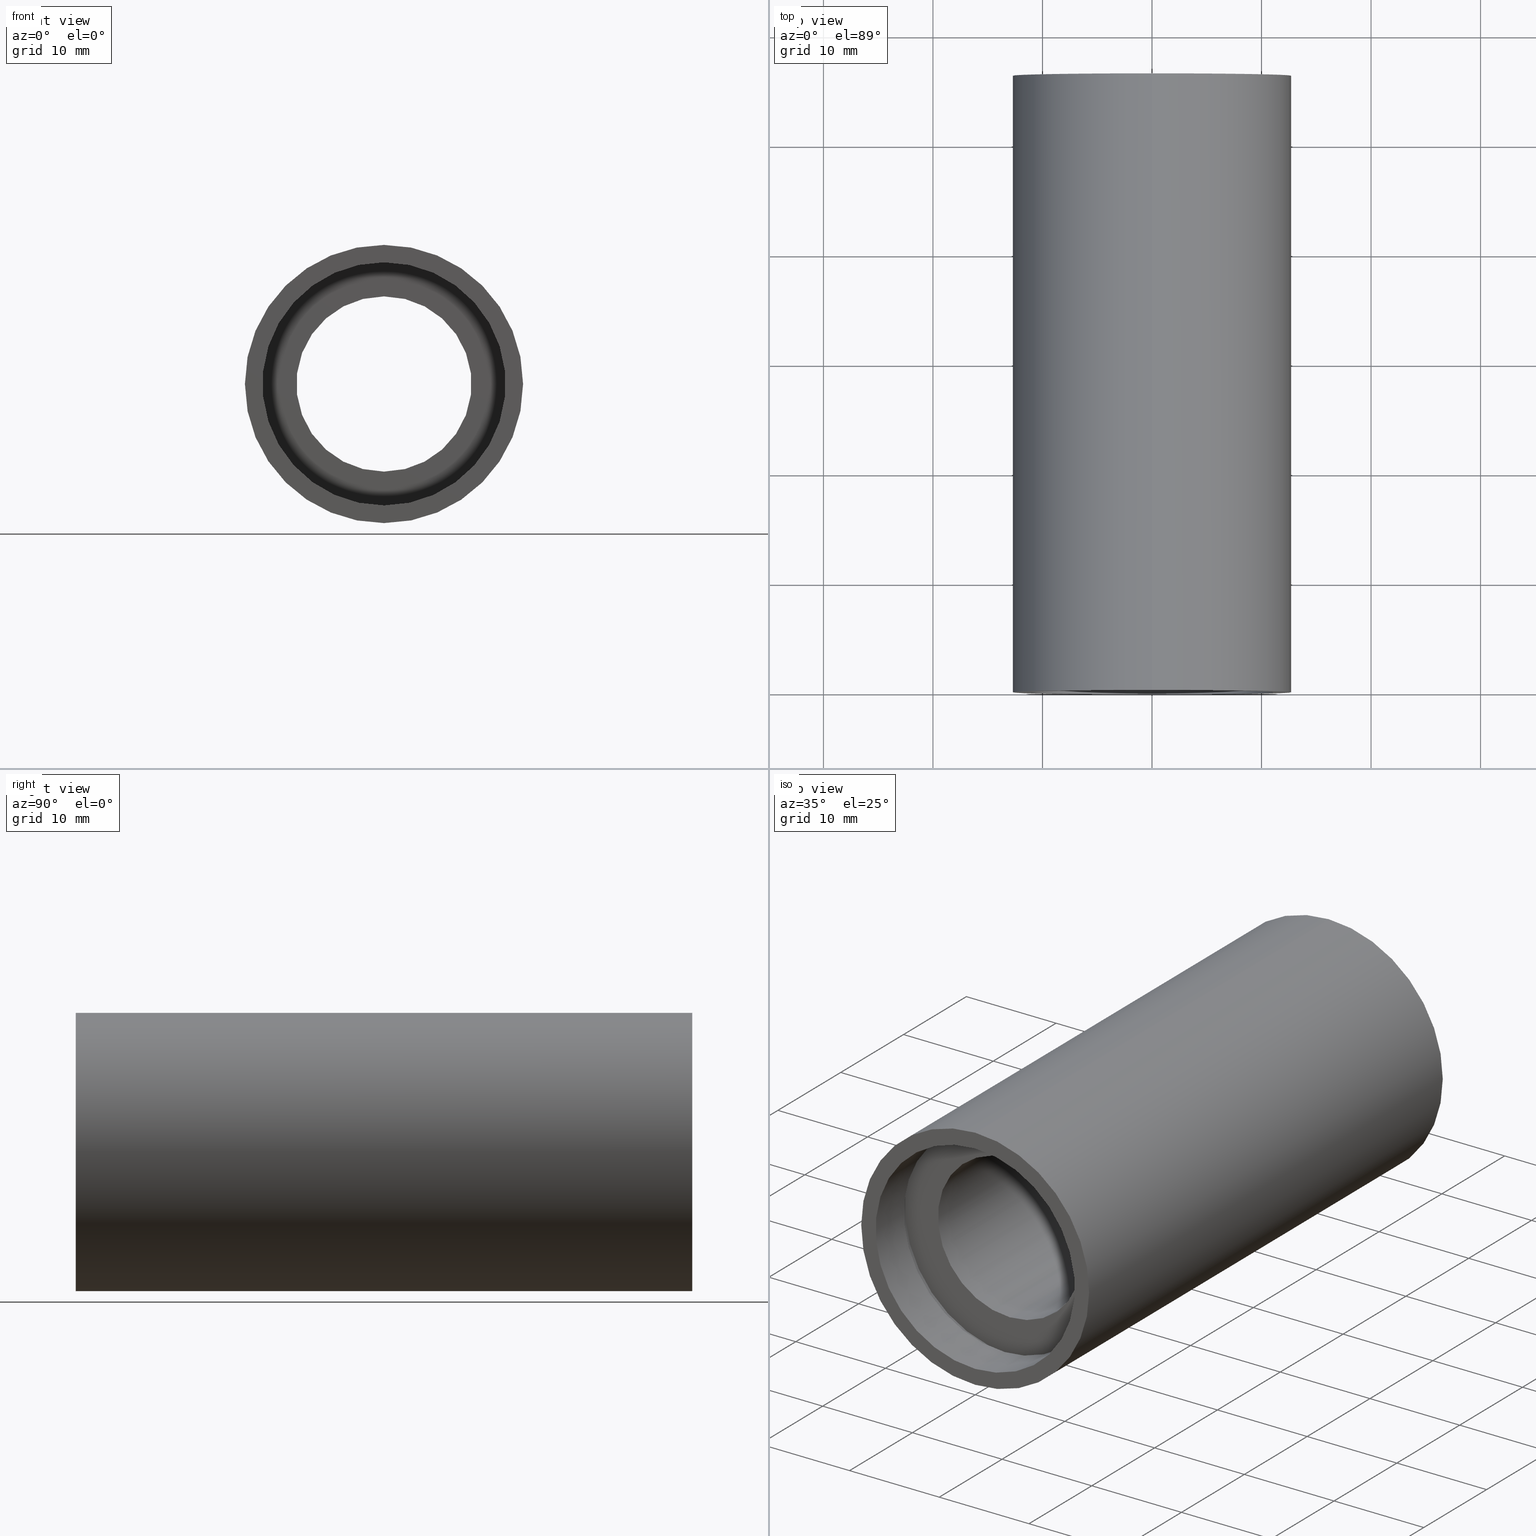
[diagram: canonical four-view strip — front | top / right | iso, engineering-drawing reading convention]
A machine part, canonical four-view strip (front | top / right | iso — engineering-drawing reading convention). The complete STEP part file that produces these views, byte-faithful:
ISO-10303-21;
HEADER;
FILE_DESCRIPTION (( 'STEP AP214' ),
    '1' );
FILE_NAME ('503073.STEP',
    '2019-09-10T03:29:06',
    ( '' ),
    ( '' ),
    'SwSTEP 2.0',
    'SolidWorks 2016',
    '' );
FILE_SCHEMA (( 'AUTOMOTIVE_DESIGN' ));
ENDSEC;

DATA;
#1 = CARTESIAN_POINT ( 'NONE',  ( 0.0000000000000000000, 5.499999999999976900, 11.70000000000001700 ) ) ;
#2 = LINE ( 'NONE', #307, #295 ) ;
#3 = LINE ( 'NONE', #424, #317 ) ;
#4 = ORIENTED_EDGE ( 'NONE', *, *, #230, .T. ) ;
#5 = VERTEX_POINT ( 'NONE', #1 ) ;
#6 = PRODUCT_DEFINITION_FORMATION_WITH_SPECIFIED_SOURCE ( '�κ�', '', #478, .NOT_KNOWN. ) ;
#7 = CIRCLE ( 'NONE', #447, 8.000000000000019500 ) ;
#8 = EDGE_CURVE ( 'NONE', #96, #45, #528, .T. ) ;
#9 = DIRECTION ( 'NONE',  ( 0.0000000000000000000, 0.0000000000000000000, 1.000000000000000000 ) ) ;
#10 = AXIS2_PLACEMENT_3D ( 'NONE', #87, #523, #231 ) ;
#11 = EDGE_CURVE ( 'NONE', #56, #526, #200, .T. ) ;
#12 = CARTESIAN_POINT ( 'NONE',  ( 0.0000000000000000000, 56.29999999999999000, 0.0000000000000000000 ) ) ;
#13 = CARTESIAN_POINT ( 'NONE',  ( 0.0000000000000000000, 161.3761669434274500, 11.60000000000003300 ) ) ;
#14 = CARTESIAN_POINT ( 'NONE',  ( 0.0000000000000000000, 161.3761669434274500, 0.0000000000000000000 ) ) ;
#15 = DIRECTION ( 'NONE',  ( -0.0000000000000000000, 1.000000000000000000, -0.0000000000000000000 ) ) ;
#16 = CARTESIAN_POINT ( 'NONE',  ( 0.0000000000000000000, 4.499999999999976000, 0.0000000000000000000 ) ) ;
#17 = DIRECTION ( 'NONE',  ( 0.0000000000000000000, 0.0000000000000000000, 1.000000000000000000 ) ) ;
#18 = CARTESIAN_POINT ( 'NONE',  ( 0.0000000000000000000, 4.499999999999976000, 0.0000000000000000000 ) ) ;
#19 = FACE_OUTER_BOUND ( 'NONE', #380, .T. ) ;
#20 = EDGE_CURVE ( 'NONE', #45, #96, #521, .T. ) ;
#21 =( LENGTH_UNIT ( ) NAMED_UNIT ( * ) SI_UNIT ( .MILLI., .METRE. ) );
#22 = ORIENTED_EDGE ( 'NONE', *, *, #140, .F. ) ;
#23 = CARTESIAN_POINT ( 'NONE',  ( 0.0000000000000000000, 161.3761669434274500, 0.0000000000000000000 ) ) ;
#24 = PRESENTATION_LAYER_ASSIGNMENT (  '', '', ( #389 ) ) ;
#25 = ORIENTED_EDGE ( 'NONE', *, *, #607, .F. ) ;
#26 = CARTESIAN_POINT ( 'NONE',  ( 0.0000000000000000000, 161.3761669434274500, 11.70000000000001000 ) ) ;
#27 = SURFACE_STYLE_USAGE ( .BOTH. , #542 ) ;
#28 = SURFACE_STYLE_FILL_AREA ( #40 ) ;
#29 = DIRECTION ( 'NONE',  ( 0.0000000000000000000, 0.0000000000000000000, 1.000000000000000000 ) ) ;
#30 = CIRCLE ( 'NONE', #336, 11.60000000000003300 ) ;
#31 =( LENGTH_UNIT ( ) NAMED_UNIT ( * ) SI_UNIT ( .MILLI., .METRE. ) );
#32 = MANIFOLD_SOLID_BREP ( '��ת1', #47 ) ;
#33 =( LENGTH_UNIT ( ) NAMED_UNIT ( * ) SI_UNIT ( .MILLI., .METRE. ) );
#34 = CARTESIAN_POINT ( 'NONE',  ( 0.0000000000000000000, 56.29999999999999000, 12.70000000000001900 ) ) ;
#35 = VERTEX_POINT ( 'NONE', #98 ) ;
#36 = VERTEX_POINT ( 'NONE', #246 ) ;
#37 = DIRECTION ( 'NONE',  ( -0.0000000000000000000, 1.000000000000000000, 0.0000000000000000000 ) ) ;
#38 = PRESENTATION_LAYER_ASSIGNMENT (  '', '', ( #514 ) ) ;
#39 = SURFACE_STYLE_USAGE ( .BOTH. , #419 ) ;
#40 = FILL_AREA_STYLE ('',( #610 ) ) ;
#41 =( NAMED_UNIT ( * ) SI_UNIT ( $, .STERADIAN. ) SOLID_ANGLE_UNIT ( ) );
#42 = FACE_OUTER_BOUND ( 'NONE', #198, .T. ) ;
#43 = DIRECTION ( 'NONE',  ( -0.0000000000000000000, 1.000000000000000000, -0.0000000000000000000 ) ) ;
#44 = UNCERTAINTY_MEASURE_WITH_UNIT (LENGTH_MEASURE( 1.000000000000000100E-005 ), #165, 'distance_accuracy_value', 'NONE');
#45 = VERTEX_POINT ( 'NONE', #148 ) ;
#46 = CARTESIAN_POINT ( 'NONE',  ( 1.432836755002405500E-015, 5.499999999999976900, -11.70000000000001700 ) ) ;
#47 = CLOSED_SHELL ( 'NONE', ( #221, #511, #320, #258, #173, #227, #373, #83, #131, #415, #615, #315, #420, #69, #471, #560, #611, #120 ) ) ;
#48 = EDGE_CURVE ( 'NONE', #526, #56, #361, .T. ) ;
#49 = PRODUCT_DEFINITION_CONTEXT ( 'detailed design', #507, 'design' ) ;
#50 = CYLINDRICAL_SURFACE ( 'NONE', #455, 11.60000000000003300 ) ;
#51 = EDGE_CURVE ( 'NONE', #108, #526, #164, .T. ) ;
#52 = EDGE_LOOP ( 'NONE', ( #111, #188 ) ) ;
#53 = LINE ( 'NONE', #59, #203 ) ;
#54 = CIRCLE ( 'NONE', #223, 11.70000000000001700 ) ;
#55 = PRESENTATION_LAYER_ASSIGNMENT (  '', '', ( #509 ) ) ;
#56 = VERTEX_POINT ( 'NONE', #251 ) ;
#57 = FILL_AREA_STYLE_COLOUR ( '', #151 ) ;
#58 = AXIS2_PLACEMENT_3D ( 'NONE', #581, #15, #300 ) ;
#59 = CARTESIAN_POINT ( 'NONE',  ( 0.0000000000000000000, 161.3761669434274500, 12.70000000000001900 ) ) ;
#60 =( NAMED_UNIT ( * ) SI_UNIT ( $, .STERADIAN. ) SOLID_ANGLE_UNIT ( ) );
#61 =( NAMED_UNIT ( * ) PLANE_ANGLE_UNIT ( ) SI_UNIT ( $, .RADIAN. ) );
#62 = DIRECTION ( 'NONE',  ( -0.0000000000000000000, 1.000000000000000000, -0.0000000000000000000 ) ) ;
#63 = DIRECTION ( 'NONE',  ( 0.0000000000000000000, 0.0000000000000000000, 1.000000000000000000 ) ) ;
#64 = VERTEX_POINT ( 'NONE', #342 ) ;
#65 = DIRECTION ( 'NONE',  ( -0.0000000000000000000, 1.000000000000000000, -0.0000000000000000000 ) ) ;
#66 = AXIS2_PLACEMENT_3D ( 'NONE', #329, #278, #614 ) ;
#67 = DIRECTION ( 'NONE',  ( 0.0000000000000000000, 0.0000000000000000000, 1.000000000000000000 ) ) ;
#68 = APPLICATION_PROTOCOL_DEFINITION ( 'draft international standard', 'automotive_design', 1998, #507 ) ;
#69 = ADVANCED_FACE ( 'NONE', ( #574 ), #485, .F. ) ;
#70 = ORIENTED_EDGE ( 'NONE', *, *, #498, .F. ) ;
#71 = AXIS2_PLACEMENT_3D ( 'NONE', #228, #219, #566 ) ;
#72 = FACE_BOUND ( 'NONE', #162, .T. ) ;
#73 = DIRECTION ( 'NONE',  ( 0.0000000000000000000, -1.000000000000000000, 0.0000000000000000000 ) ) ;
#74 = DIRECTION ( 'NONE',  ( 0.0000000000000000000, 0.0000000000000000000, 1.000000000000000000 ) ) ;
#75 = DIRECTION ( 'NONE',  ( -0.0000000000000000000, 1.000000000000000000, -0.0000000000000000000 ) ) ;
#76 = MECHANICAL_DESIGN_GEOMETRIC_PRESENTATION_REPRESENTATION (  '', ( #509 ), #294 ) ;
#77 = EDGE_CURVE ( 'NONE', #466, #360, #443, .T. ) ;
#78 = PLANE ( 'NONE',  #303 ) ;
#79 = CARTESIAN_POINT ( 'NONE',  ( 0.0000000000000000000, 56.29999999999999000, 0.0000000000000000000 ) ) ;
#80 = ORIENTED_EDGE ( 'NONE', *, *, #174, .T. ) ;
#81 = ORIENTED_EDGE ( 'NONE', *, *, #524, .T. ) ;
#82 = DIRECTION ( 'NONE',  ( 0.0000000000000000000, 0.0000000000000000000, 1.000000000000000000 ) ) ;
#83 = ADVANCED_FACE ( 'NONE', ( #112 ), #183, .T. ) ;
#84 = PRESENTATION_LAYER_ASSIGNMENT (  '', '', ( #289 ) ) ;
#85 = SURFACE_STYLE_FILL_AREA ( #398 ) ;
#86 =( NAMED_UNIT ( * ) SI_UNIT ( $, .STERADIAN. ) SOLID_ANGLE_UNIT ( ) );
#87 = CARTESIAN_POINT ( 'NONE',  ( 0.0000000000000000000, 161.3761669434274500, 0.0000000000000000000 ) ) ;
#88 = CYLINDRICAL_SURFACE ( 'NONE', #538, 11.60000000000003300 ) ;
#89 = DIRECTION ( 'NONE',  ( 0.0000000000000000000, -0.0000000000000000000, -1.000000000000000000 ) ) ;
#90 = SURFACE_STYLE_FILL_AREA ( #463 ) ;
#91 = DIRECTION ( 'NONE',  ( 0.0000000000000000000, 0.0000000000000000000, 1.000000000000000000 ) ) ;
#92 = EDGE_CURVE ( 'NONE', #97, #400, #605, .T. ) ;
#93 = FACE_OUTER_BOUND ( 'NONE', #409, .T. ) ;
#94 = STYLED_ITEM ( 'NONE', ( #549 ), #173 ) ;
#95 = EDGE_LOOP ( 'NONE', ( #310, #333, #309, #578 ) ) ;
#96 = VERTEX_POINT ( 'NONE', #452 ) ;
#97 = VERTEX_POINT ( 'NONE', #291 ) ;
#98 = CARTESIAN_POINT ( 'NONE',  ( 1.359357947053564500E-015, 4.499999999999976000, -11.10000000000001900 ) ) ;
#99 = FACE_OUTER_BOUND ( 'NONE', #146, .T. ) ;
#100 = AXIS2_PLACEMENT_3D ( 'NONE', #305, #503, #222 ) ;
#101 = EDGE_CURVE ( 'NONE', #64, #97, #411, .T. ) ;
#102 = EDGE_LOOP ( 'NONE', ( #569, #430 ) ) ;
#103 = CIRCLE ( 'NONE', #416, 11.60000000000003200 ) ;
#104 = AXIS2_PLACEMENT_3D ( 'NONE', #496, #202, #255 ) ;
#105 = DIRECTION ( 'NONE',  ( 0.0000000000000000000, 0.0000000000000000000, 1.000000000000000000 ) ) ;
#106 = CIRCLE ( 'NONE', #137, 12.70000000000001900 ) ;
#107 = DIRECTION ( 'NONE',  ( -0.0000000000000000000, 1.000000000000000000, -0.0000000000000000000 ) ) ;
#108 = VERTEX_POINT ( 'NONE', #194 ) ;
#109 = CARTESIAN_POINT ( 'NONE',  ( 1.432836755002405500E-015, 161.3761669434274500, -11.70000000000001700 ) ) ;
#110 = EDGE_CURVE ( 'NONE', #408, #622, #338, .T. ) ;
#111 = ORIENTED_EDGE ( 'NONE', *, *, #11, .F. ) ;
#112 = FACE_OUTER_BOUND ( 'NONE', #594, .T. ) ;
#113 =( LENGTH_UNIT ( ) NAMED_UNIT ( * ) SI_UNIT ( .MILLI., .METRE. ) );
#114 = STYLED_ITEM ( 'NONE', ( #481 ), #120 ) ;
#115 = EDGE_CURVE ( 'NONE', #400, #97, #103, .T. ) ;
#116 = VECTOR ( 'NONE', #311, 1000.000000000000000 ) ;
#117 = DIRECTION ( 'NONE',  ( -0.0000000000000000000, 1.000000000000000000, -0.0000000000000000000 ) ) ;
#118 = ORIENTED_EDGE ( 'NONE', *, *, #158, .F. ) ;
#119 = FILL_AREA_STYLE ('',( #57 ) ) ;
#120 = ADVANCED_FACE ( 'NONE', ( #142 ), #475, .F. ) ;
#121 = EDGE_CURVE ( 'NONE', #360, #182, #269, .T. ) ;
#122 = DIRECTION ( 'NONE',  ( 0.0000000000000000000, 0.0000000000000000000, 1.000000000000000000 ) ) ;
#123 = CARTESIAN_POINT ( 'NONE',  ( 1.420590287010933900E-015, 161.3761669434274500, -11.60000000000003300 ) ) ;
#124 = ORIENTED_EDGE ( 'NONE', *, *, #158, .T. ) ;
#125 =( GEOMETRIC_REPRESENTATION_CONTEXT ( 3 ) GLOBAL_UNCERTAINTY_ASSIGNED_CONTEXT ( ( #384 ) ) GLOBAL_UNIT_ASSIGNED_CONTEXT ( ( #417, #169, #259 ) ) REPRESENTATION_CONTEXT ( 'NONE', 'WORKASPACE' ) );
#126 = DIRECTION ( 'NONE',  ( 0.0000000000000000000, 0.0000000000000000000, 1.000000000000000000 ) ) ;
#127 = UNCERTAINTY_MEASURE_WITH_UNIT (LENGTH_MEASURE( 1.000000000000000100E-005 ), #31, 'distance_accuracy_value', 'NONE');
#128 = SURFACE_STYLE_FILL_AREA ( #402 ) ;
#129 = FILL_AREA_STYLE ('',( #319 ) ) ;
#130 = ORIENTED_EDGE ( 'NONE', *, *, #92, .T. ) ;
#131 = ADVANCED_FACE ( 'NONE', ( #72, #313 ), #406, .F. ) ;
#132 = PLANE ( 'NONE',  #235 ) ;
#133 =( LENGTH_UNIT ( ) NAMED_UNIT ( * ) SI_UNIT ( .MILLI., .METRE. ) );
#134 = CIRCLE ( 'NONE', #368, 11.70000000000001700 ) ;
#135 = SURFACE_SIDE_STYLE ('',( #28 ) ) ;
#136 = ORIENTED_EDGE ( 'NONE', *, *, #239, .F. ) ;
#137 = AXIS2_PLACEMENT_3D ( 'NONE', #567, #172, #181 ) ;
#138 = DIRECTION ( 'NONE',  ( 0.0000000000000000000, 0.0000000000000000000, 1.000000000000000000 ) ) ;
#139 = CARTESIAN_POINT ( 'NONE',  ( 0.0000000000000000000, -2.775557561562891400E-014, 0.0000000000000000000 ) ) ;
#140 = EDGE_CURVE ( 'NONE', #360, #466, #596, .T. ) ;
#141 = ORIENTED_EDGE ( 'NONE', *, *, #51, .F. ) ;
#142 = FACE_OUTER_BOUND ( 'NONE', #500, .T. ) ;
#143 = COLOUR_RGB ( '',1.000000000000000000, 1.000000000000000000, 1.000000000000000000 ) ;
#144 = MECHANICAL_DESIGN_GEOMETRIC_PRESENTATION_REPRESENTATION (  '', ( #94 ), #157 ) ;
#145 = DIRECTION ( 'NONE',  ( 0.0000000000000000000, 0.0000000000000000000, 1.000000000000000000 ) ) ;
#146 = EDGE_LOOP ( 'NONE', ( #534, #548, #442, #130 ) ) ;
#147 =( GEOMETRIC_REPRESENTATION_CONTEXT ( 3 ) GLOBAL_UNCERTAINTY_ASSIGNED_CONTEXT ( ( #287 ) ) GLOBAL_UNIT_ASSIGNED_CONTEXT ( ( #273, #473, #520 ) ) REPRESENTATION_CONTEXT ( 'NONE', 'WORKASPACE' ) );
#148 = CARTESIAN_POINT ( 'NONE',  ( 0.0000000000000000000, 50.79999999999998300, 8.000000000000019500 ) ) ;
#149 = ORIENTED_EDGE ( 'NONE', *, *, #115, .T. ) ;
#150 = ORIENTED_EDGE ( 'NONE', *, *, #544, .F. ) ;
#151 = COLOUR_RGB ( '',1.000000000000000000, 1.000000000000000000, 1.000000000000000000 ) ;
#152 = DIRECTION ( 'NONE',  ( -0.0000000000000000000, 1.000000000000000000, -0.0000000000000000000 ) ) ;
#153 =( GEOMETRIC_REPRESENTATION_CONTEXT ( 3 ) GLOBAL_UNCERTAINTY_ASSIGNED_CONTEXT ( ( #127 ) ) GLOBAL_UNIT_ASSIGNED_CONTEXT ( ( #31, #563, #41 ) ) REPRESENTATION_CONTEXT ( 'NONE', 'WORKASPACE' ) );
#154 =( NAMED_UNIT ( * ) PLANE_ANGLE_UNIT ( ) SI_UNIT ( $, .RADIAN. ) );
#155 = EDGE_LOOP ( 'NONE', ( #81, #276 ) ) ;
#156 = CARTESIAN_POINT ( 'NONE',  ( 0.0000000000000000000, 161.3761669434274500, 0.0000000000000000000 ) ) ;
#157 =( GEOMETRIC_REPRESENTATION_CONTEXT ( 3 ) GLOBAL_UNCERTAINTY_ASSIGNED_CONTEXT ( ( #391 ) ) GLOBAL_UNIT_ASSIGNED_CONTEXT ( ( #21, #356, #465 ) ) REPRESENTATION_CONTEXT ( 'NONE', 'WORKASPACE' ) );
#158 = EDGE_CURVE ( 'NONE', #622, #408, #7, .T. ) ;
#159 = CIRCLE ( 'NONE', #480, 11.70000000000001700 ) ;
#160 = DIRECTION ( 'NONE',  ( -0.0000000000000000000, 1.000000000000000000, -0.0000000000000000000 ) ) ;
#161 = ORIENTED_EDGE ( 'NONE', *, *, #92, .F. ) ;
#162 = EDGE_LOOP ( 'NONE', ( #161, #586 ) ) ;
#163 = CARTESIAN_POINT ( 'NONE',  ( 11.70000000000001700, 5.499999999999987600, 0.0000000000000000000 ) ) ;
#164 = LINE ( 'NONE', #451, #376 ) ;
#165 =( LENGTH_UNIT ( ) NAMED_UNIT ( * ) SI_UNIT ( .MILLI., .METRE. ) );
#166 = CARTESIAN_POINT ( 'NONE',  ( 0.0000000000000000000, 161.3761669434274500, 0.0000000000000000000 ) ) ;
#167 = DIRECTION ( 'NONE',  ( -0.0000000000000000000, 1.000000000000000000, -0.0000000000000000000 ) ) ;
#168 = LINE ( 'NONE', #26, #440 ) ;
#169 =( NAMED_UNIT ( * ) PLANE_ANGLE_UNIT ( ) SI_UNIT ( $, .RADIAN. ) );
#170 = CARTESIAN_POINT ( 'NONE',  ( 11.60000000000003300, 51.79999999999997600, 0.0000000000000000000 ) ) ;
#171 = AXIS2_PLACEMENT_3D ( 'NONE', #436, #242, #145 ) ;
#172 = DIRECTION ( 'NONE',  ( -0.0000000000000000000, 1.000000000000000000, -0.0000000000000000000 ) ) ;
#173 = ADVANCED_FACE ( 'NONE', ( #381 ), #88, .F. ) ;
#174 = EDGE_CURVE ( 'NONE', #519, #330, #369, .T. ) ;
#175 = ORIENTED_EDGE ( 'NONE', *, *, #110, .T. ) ;
#176 = DIRECTION ( 'NONE',  ( 1.000000000000000000, 0.0000000000000000000, 0.0000000000000000000 ) ) ;
#177 = CARTESIAN_POINT ( 'NONE',  ( 1.555301434917140800E-015, 56.29999999999999000, -12.70000000000001900 ) ) ;
#178 = PLANE ( 'NONE',  #351 ) ;
#179 = CYLINDRICAL_SURFACE ( 'NONE', #426, 8.000000000000019500 ) ;
#180 = PLANE ( 'NONE',  #271 ) ;
#181 = DIRECTION ( 'NONE',  ( 0.0000000000000000000, 0.0000000000000000000, 1.000000000000000000 ) ) ;
#182 = VERTEX_POINT ( 'NONE', #403 ) ;
#183 = CYLINDRICAL_SURFACE ( 'NONE', #58, 12.70000000000001900 ) ;
#184 = ORIENTED_EDGE ( 'NONE', *, *, #274, .T. ) ;
#185 = AXIS2_PLACEMENT_3D ( 'NONE', #272, #608, #367 ) ;
#186 = EDGE_LOOP ( 'NONE', ( #70, #118, #302, #585 ) ) ;
#187 = ORIENTED_EDGE ( 'NONE', *, *, #274, .F. ) ;
#188 = ORIENTED_EDGE ( 'NONE', *, *, #48, .F. ) ;
#189 = FACE_BOUND ( 'NONE', #448, .T. ) ;
#190 = AXIS2_PLACEMENT_3D ( 'NONE', #371, #279, #427 ) ;
#191 = FACE_OUTER_BOUND ( 'NONE', #299, .T. ) ;
#192 = ADVANCED_BREP_SHAPE_REPRESENTATION ( '503073', ( #32, #570 ), #147 ) ;
#193 = AXIS2_PLACEMENT_3D ( 'NONE', #551, #160, #593 ) ;
#194 = CARTESIAN_POINT ( 'NONE',  ( 1.432836755002404700E-015, 50.79999999999998300, -11.70000000000001000 ) ) ;
#195 = CIRCLE ( 'NONE', #185, 11.60000000000003300 ) ;
#196 = DIRECTION ( 'NONE',  ( 0.0000000000000000000, 0.0000000000000000000, 1.000000000000000000 ) ) ;
#197 = EDGE_LOOP ( 'NONE', ( #229, #233 ) ) ;
#198 = EDGE_LOOP ( 'NONE', ( #390, #25 ) ) ;
#199 = DIRECTION ( 'NONE',  ( 0.0000000000000000000, 0.0000000000000000000, 1.000000000000000000 ) ) ;
#200 = CIRCLE ( 'NONE', #171, 11.70000000000001000 ) ;
#201 =( GEOMETRIC_REPRESENTATION_CONTEXT ( 3 ) GLOBAL_UNCERTAINTY_ASSIGNED_CONTEXT ( ( #306 ) ) GLOBAL_UNIT_ASSIGNED_CONTEXT ( ( #113, #154, #60 ) ) REPRESENTATION_CONTEXT ( 'NONE', 'WORKASPACE' ) );
#202 = DIRECTION ( 'NONE',  ( -0.0000000000000000000, 1.000000000000000000, -0.0000000000000000000 ) ) ;
#203 = VECTOR ( 'NONE', #204, 1000.000000000000000 ) ;
#204 = DIRECTION ( 'NONE',  ( -0.0000000000000000000, 1.000000000000000000, -0.0000000000000000000 ) ) ;
#205 = DIRECTION ( 'NONE',  ( 0.0000000000000000000, -0.0000000000000000000, -1.000000000000000000 ) ) ;
#206 = ORIENTED_EDGE ( 'NONE', *, *, #335, .F. ) ;
#207 = DIRECTION ( 'NONE',  ( 0.0000000000000000000, 0.0000000000000000000, 1.000000000000000000 ) ) ;
#208 = SURFACE_STYLE_FILL_AREA ( #119 ) ;
#209 = DIRECTION ( 'NONE',  ( -0.0000000000000000000, 1.000000000000000000, -0.0000000000000000000 ) ) ;
#210 = DIRECTION ( 'NONE',  ( -0.0000000000000000000, 1.000000000000000000, -0.0000000000000000000 ) ) ;
#211 = CARTESIAN_POINT ( 'NONE',  ( 0.0000000000000000000, -2.775557561562891400E-014, 12.70000000000001900 ) ) ;
#212 = FILL_AREA_STYLE_COLOUR ( '', #476 ) ;
#213 = CYLINDRICAL_SURFACE ( 'NONE', #100, 11.10000000000002100 ) ;
#214 = CARTESIAN_POINT ( 'NONE',  ( 8.000000000000019500, 50.79999999999997600, 0.0000000000000000000 ) ) ;
#215 = EDGE_CURVE ( 'NONE', #359, #36, #159, .T. ) ;
#216 = DIRECTION ( 'NONE',  ( -0.0000000000000000000, 1.000000000000000000, -0.0000000000000000000 ) ) ;
#217 = ORIENTED_EDGE ( 'NONE', *, *, #438, .T. ) ;
#218 =( NAMED_UNIT ( * ) SI_UNIT ( $, .STERADIAN. ) SOLID_ANGLE_UNIT ( ) );
#219 = DIRECTION ( 'NONE',  ( -0.0000000000000000000, 1.000000000000000000, -0.0000000000000000000 ) ) ;
#220 = APPLICATION_PROTOCOL_DEFINITION ( 'draft international standard', 'automotive_design', 1998, #515 ) ;
#221 = ADVANCED_FACE ( 'NONE', ( #600 ), #213, .F. ) ;
#222 = DIRECTION ( 'NONE',  ( 0.0000000000000000000, 0.0000000000000000000, 1.000000000000000000 ) ) ;
#223 = AXIS2_PLACEMENT_3D ( 'NONE', #495, #345, #499 ) ;
#224 = FACE_BOUND ( 'NONE', #197, .T. ) ;
#225 = CARTESIAN_POINT ( 'NONE',  ( 11.10000000000001900, 4.499999999999983100, 0.0000000000000000000 ) ) ;
#226 = VECTOR ( 'NONE', #418, 1000.000000000000000 ) ;
#227 = ADVANCED_FACE ( 'NONE', ( #483 ), #583, .T. ) ;
#228 = CARTESIAN_POINT ( 'NONE',  ( 0.0000000000000000000, 4.499999999999976000, 0.0000000000000000000 ) ) ;
#229 = ORIENTED_EDGE ( 'NONE', *, *, #366, .F. ) ;
#230 = EDGE_CURVE ( 'NONE', #330, #519, #325, .T. ) ;
#231 = DIRECTION ( 'NONE',  ( 0.0000000000000000000, 0.0000000000000000000, 1.000000000000000000 ) ) ;
#232 = PRESENTATION_LAYER_ASSIGNMENT (  '', '', ( #94 ) ) ;
#233 = ORIENTED_EDGE ( 'NONE', *, *, #301, .F. ) ;
#234 = UNCERTAINTY_MEASURE_WITH_UNIT (LENGTH_MEASURE( 1.000000000000000100E-005 ), #33, 'distance_accuracy_value', 'NONE');
#235 = AXIS2_PLACEMENT_3D ( 'NONE', #163, #555, #606 ) ;
#236 = PRESENTATION_STYLE_ASSIGNMENT (( #488 ) ) ;
#237 = AXIS2_PLACEMENT_3D ( 'NONE', #445, #152, #9 ) ;
#238 =( GEOMETRIC_REPRESENTATION_CONTEXT ( 3 ) GLOBAL_UNCERTAINTY_ASSIGNED_CONTEXT ( ( #44 ) ) GLOBAL_UNIT_ASSIGNED_CONTEXT ( ( #165, #602, #218 ) ) REPRESENTATION_CONTEXT ( 'NONE', 'WORKASPACE' ) );
#239 = EDGE_CURVE ( 'NONE', #248, #286, #106, .T. ) ;
#240 = FACE_OUTER_BOUND ( 'NONE', #95, .T. ) ;
#241 = PRESENTATION_STYLE_ASSIGNMENT (( #327 ) ) ;
#242 = DIRECTION ( 'NONE',  ( -0.0000000000000000000, 1.000000000000000000, -0.0000000000000000000 ) ) ;
#243 = ORIENTED_EDGE ( 'NONE', *, *, #335, .T. ) ;
#244 = CYLINDRICAL_SURFACE ( 'NONE', #10, 11.70000000000001000 ) ;
#245 = EDGE_CURVE ( 'NONE', #108, #616, #525, .T. ) ;
#246 = CARTESIAN_POINT ( 'NONE',  ( 0.0000000000000000000, 4.499999999999976000, 11.70000000000001700 ) ) ;
#247 = ORIENTED_EDGE ( 'NONE', *, *, #562, .T. ) ;
#248 = VERTEX_POINT ( 'NONE', #177 ) ;
#249 = DIRECTION ( 'NONE',  ( -0.0000000000000000000, 1.000000000000000000, -0.0000000000000000000 ) ) ;
#250 = AXIS2_PLACEMENT_3D ( 'NONE', #388, #285, #105 ) ;
#251 = CARTESIAN_POINT ( 'NONE',  ( 0.0000000000000000000, 51.79999999999998300, 11.70000000000001000 ) ) ;
#252 = CARTESIAN_POINT ( 'NONE',  ( 0.0000000000000000000, -2.775557561562891400E-014, 11.10000000000002300 ) ) ;
#253 = DIRECTION ( 'NONE',  ( 0.0000000000000000000, 0.0000000000000000000, 1.000000000000000000 ) ) ;
#254 = LINE ( 'NONE', #123, #288 ) ;
#255 = DIRECTION ( 'NONE',  ( 0.0000000000000000000, 0.0000000000000000000, 1.000000000000000000 ) ) ;
#256 = ORIENTED_EDGE ( 'NONE', *, *, #110, .F. ) ;
#257 = CARTESIAN_POINT ( 'NONE',  ( 1.432836755002404700E-015, 51.79999999999998300, -11.70000000000001000 ) ) ;
#258 = ADVANCED_FACE ( 'NONE', ( #387 ), #244, .F. ) ;
#259 =( NAMED_UNIT ( * ) SI_UNIT ( $, .STERADIAN. ) SOLID_ANGLE_UNIT ( ) );
#260 = UNCERTAINTY_MEASURE_WITH_UNIT (LENGTH_MEASURE( 1.000000000000000100E-005 ), #133, 'distance_accuracy_value', 'NONE');
#261 = LINE ( 'NONE', #504, #537 ) ;
#262 = COLOUR_RGB ( '',1.000000000000000000, 1.000000000000000000, 1.000000000000000000 ) ;
#263 = STYLED_ITEM ( 'NONE', ( #429 ), #320 ) ;
#264 = SURFACE_STYLE_USAGE ( .BOTH. , #267 ) ;
#265 = SURFACE_SIDE_STYLE ('',( #576 ) ) ;
#266 = ORIENTED_EDGE ( 'NONE', *, *, #579, .T. ) ;
#267 = SURFACE_SIDE_STYLE ('',( #90 ) ) ;
#268 = ORIENTED_EDGE ( 'NONE', *, *, #401, .F. ) ;
#269 = LINE ( 'NONE', #270, #435 ) ;
#270 = CARTESIAN_POINT ( 'NONE',  ( 0.0000000000000000000, 161.3761669434274500, 11.10000000000002100 ) ) ;
#271 = AXIS2_PLACEMENT_3D ( 'NONE', #225, #375, #89 ) ;
#272 = CARTESIAN_POINT ( 'NONE',  ( 0.0000000000000000000, 51.79999999999998300, 0.0000000000000000000 ) ) ;
#273 =( LENGTH_UNIT ( ) NAMED_UNIT ( * ) SI_UNIT ( .MILLI., .METRE. ) );
#274 = EDGE_CURVE ( 'NONE', #466, #35, #3, .T. ) ;
#275 = AXIS2_PLACEMENT_3D ( 'NONE', #508, #167, #513 ) ;
#276 = ORIENTED_EDGE ( 'NONE', *, *, #215, .T. ) ;
#277 = CARTESIAN_POINT ( 'NONE',  ( 0.0000000000000000000, 50.79999999999998300, 11.70000000000001000 ) ) ;
#278 = DIRECTION ( 'NONE',  ( -0.0000000000000000000, 1.000000000000000000, -0.0000000000000000000 ) ) ;
#279 = DIRECTION ( 'NONE',  ( -0.0000000000000000000, 1.000000000000000000, -0.0000000000000000000 ) ) ;
#280 = ORIENTED_EDGE ( 'NONE', *, *, #140, .T. ) ;
#281 = EDGE_LOOP ( 'NONE', ( #124, #175 ) ) ;
#282 = EDGE_LOOP ( 'NONE', ( #80, #247, #206, #337 ) ) ;
#283 = AXIS2_PLACEMENT_3D ( 'NONE', #536, #249, #63 ) ;
#284 = FACE_OUTER_BOUND ( 'NONE', #155, .T. ) ;
#285 = DIRECTION ( 'NONE',  ( -0.0000000000000000000, 1.000000000000000000, -0.0000000000000000000 ) ) ;
#286 = VERTEX_POINT ( 'NONE', #34 ) ;
#287 = UNCERTAINTY_MEASURE_WITH_UNIT (LENGTH_MEASURE( 1.000000000000000100E-005 ), #273, 'distance_accuracy_value', 'NONE');
#288 = VECTOR ( 'NONE', #552, 1000.000000000000000 ) ;
#289 = STYLED_ITEM ( 'NONE', ( #324 ), #32 ) ;
#290 = ORIENTED_EDGE ( 'NONE', *, *, #562, .F. ) ;
#291 = CARTESIAN_POINT ( 'NONE',  ( 0.0000000000000000000, 56.29999999999999000, 11.60000000000003200 ) ) ;
#292 = CARTESIAN_POINT ( 'NONE',  ( 0.0000000000000000000, 50.79999999999998300, 0.0000000000000000000 ) ) ;
#293 = AXIS2_PLACEMENT_3D ( 'NONE', #12, #117, #397 ) ;
#294 =( GEOMETRIC_REPRESENTATION_CONTEXT ( 3 ) GLOBAL_UNCERTAINTY_ASSIGNED_CONTEXT ( ( #234 ) ) GLOBAL_UNIT_ASSIGNED_CONTEXT ( ( #33, #364, #86 ) ) REPRESENTATION_CONTEXT ( 'NONE', 'WORKASPACE' ) );
#295 = VECTOR ( 'NONE', #599, 1000.000000000000000 ) ;
#296 = UNCERTAINTY_MEASURE_WITH_UNIT (LENGTH_MEASURE( 1.000000000000000100E-005 ), #394, 'distance_accuracy_value', 'NONE');
#297 = CARTESIAN_POINT ( 'NONE',  ( 9.797174393178849300E-016, 5.499999999999976900, -8.000000000000019500 ) ) ;
#298 = SURFACE_SIDE_STYLE ('',( #128 ) ) ;
#299 = EDGE_LOOP ( 'NONE', ( #603, #489 ) ) ;
#300 = DIRECTION ( 'NONE',  ( 0.0000000000000000000, 0.0000000000000000000, 1.000000000000000000 ) ) ;
#301 = EDGE_CURVE ( 'NONE', #35, #182, #462, .T. ) ;
#302 = ORIENTED_EDGE ( 'NONE', *, *, #527, .T. ) ;
#303 = AXIS2_PLACEMENT_3D ( 'NONE', #214, #73, #205 ) ;
#304 = CARTESIAN_POINT ( 'NONE',  ( 11.10000000000002300, -1.590039098016662300E-014, 0.0000000000000000000 ) ) ;
#305 = CARTESIAN_POINT ( 'NONE',  ( 0.0000000000000000000, 161.3761669434274500, 0.0000000000000000000 ) ) ;
#306 = UNCERTAINTY_MEASURE_WITH_UNIT (LENGTH_MEASURE( 1.000000000000000100E-005 ), #113, 'distance_accuracy_value', 'NONE');
#307 = CARTESIAN_POINT ( 'NONE',  ( 9.797174393178849300E-016, 161.3761669434274500, -8.000000000000019500 ) ) ;
#308 = FILL_AREA_STYLE ('',( #212 ) ) ;
#309 = ORIENTED_EDGE ( 'NONE', *, *, #609, .T. ) ;
#310 = ORIENTED_EDGE ( 'NONE', *, *, #412, .F. ) ;
#311 = DIRECTION ( 'NONE',  ( -0.0000000000000000000, 1.000000000000000000, -0.0000000000000000000 ) ) ;
#312 = FILL_AREA_STYLE_COLOUR ( '', #352 ) ;
#313 = FACE_OUTER_BOUND ( 'NONE', #449, .T. ) ;
#314 = DIRECTION ( 'NONE',  ( -0.0000000000000000000, 1.000000000000000000, -0.0000000000000000000 ) ) ;
#315 = ADVANCED_FACE ( 'NONE', ( #93 ), #554, .F. ) ;
#316 = DIRECTION ( 'NONE',  ( -0.0000000000000000000, 1.000000000000000000, -0.0000000000000000000 ) ) ;
#317 = VECTOR ( 'NONE', #559, 1000.000000000000000 ) ;
#318 = EDGE_CURVE ( 'NONE', #64, #392, #195, .T. ) ;
#319 = FILL_AREA_STYLE_COLOUR ( '', #365 ) ;
#320 = ADVANCED_FACE ( 'NONE', ( #592 ), #179, .F. ) ;
#321 = ORIENTED_EDGE ( 'NONE', *, *, #498, .T. ) ;
#322 = FILL_AREA_STYLE ('',( #556 ) ) ;
#323 = SURFACE_STYLE_USAGE ( .BOTH. , #135 ) ;
#324 = PRESENTATION_STYLE_ASSIGNMENT (( #340 ) ) ;
#325 = CIRCLE ( 'NONE', #573, 12.70000000000001900 ) ;
#326 = DIRECTION ( 'NONE',  ( 0.0000000000000000000, 0.0000000000000000000, 1.000000000000000000 ) ) ;
#327 = SURFACE_STYLE_USAGE ( .BOTH. , #553 ) ;
#328 = VERTEX_POINT ( 'NONE', #46 ) ;
#329 = CARTESIAN_POINT ( 'NONE',  ( 0.0000000000000000000, 161.3761669434274500, 0.0000000000000000000 ) ) ;
#330 = VERTEX_POINT ( 'NONE', #487 ) ;
#331 = VECTOR ( 'NONE', #346, 1000.000000000000000 ) ;
#332 = PRESENTATION_LAYER_ASSIGNMENT (  '', '', ( #263 ) ) ;
#333 = ORIENTED_EDGE ( 'NONE', *, *, #524, .F. ) ;
#334 = ORIENTED_EDGE ( 'NONE', *, *, #239, .T. ) ;
#335 = EDGE_CURVE ( 'NONE', #286, #248, #441, .T. ) ;
#336 = AXIS2_PLACEMENT_3D ( 'NONE', #425, #517, #326 ) ;
#337 = ORIENTED_EDGE ( 'NONE', *, *, #379, .F. ) ;
#338 = CIRCLE ( 'NONE', #237, 8.000000000000019500 ) ;
#339 = STYLED_ITEM ( 'NONE', ( #404 ), #415 ) ;
#340 = SURFACE_STYLE_USAGE ( .BOTH. , #535 ) ;
#341 = DIRECTION ( 'NONE',  ( 0.0000000000000000000, 0.0000000000000000000, 1.000000000000000000 ) ) ;
#342 = CARTESIAN_POINT ( 'NONE',  ( 0.0000000000000000000, 51.79999999999998300, 11.60000000000003300 ) ) ;
#343 = ORIENTED_EDGE ( 'NONE', *, *, #121, .F. ) ;
#344 = MECHANICAL_DESIGN_GEOMETRIC_PRESENTATION_REPRESENTATION (  '', ( #389 ), #437 ) ;
#345 = DIRECTION ( 'NONE',  ( -0.0000000000000000000, 1.000000000000000000, -0.0000000000000000000 ) ) ;
#346 = DIRECTION ( 'NONE',  ( -0.0000000000000000000, 1.000000000000000000, -0.0000000000000000000 ) ) ;
#347 = DIRECTION ( 'NONE',  ( -0.0000000000000000000, 1.000000000000000000, -0.0000000000000000000 ) ) ;
#348 = EDGE_LOOP ( 'NONE', ( #604, #217, #149, #533 ) ) ;
#349 = DIRECTION ( 'NONE',  ( 0.0000000000000000000, -1.000000000000000000, 0.0000000000000000000 ) ) ;
#350 = ORIENTED_EDGE ( 'NONE', *, *, #318, .T. ) ;
#351 = AXIS2_PLACEMENT_3D ( 'NONE', #170, #37, #565 ) ;
#352 = COLOUR_RGB ( '',1.000000000000000000, 1.000000000000000000, 1.000000000000000000 ) ;
#353 = DIRECTION ( 'NONE',  ( -0.0000000000000000000, 1.000000000000000000, -0.0000000000000000000 ) ) ;
#354 = DIRECTION ( 'NONE',  ( 0.0000000000000000000, 0.0000000000000000000, 1.000000000000000000 ) ) ;
#355 = AXIS2_PLACEMENT_3D ( 'NONE', #518, #43, #91 ) ;
#356 =( NAMED_UNIT ( * ) PLANE_ANGLE_UNIT ( ) SI_UNIT ( $, .RADIAN. ) );
#357 = FACE_BOUND ( 'NONE', #281, .T. ) ;
#358 = CARTESIAN_POINT ( 'NONE',  ( 1.359357947053564900E-015, -2.775557561562891400E-014, -11.10000000000002300 ) ) ;
#359 = VERTEX_POINT ( 'NONE', #580 ) ;
#360 = VERTEX_POINT ( 'NONE', #252 ) ;
#361 = CIRCLE ( 'NONE', #283, 11.70000000000001000 ) ;
#362 = DIRECTION ( 'NONE',  ( -0.0000000000000000000, 1.000000000000000000, -0.0000000000000000000 ) ) ;
#363 = CARTESIAN_POINT ( 'NONE',  ( 0.0000000000000000000, 161.3761669434274500, 0.0000000000000000000 ) ) ;
#364 =( NAMED_UNIT ( * ) PLANE_ANGLE_UNIT ( ) SI_UNIT ( $, .RADIAN. ) );
#365 = COLOUR_RGB ( '',1.000000000000000000, 1.000000000000000000, 1.000000000000000000 ) ;
#366 = EDGE_CURVE ( 'NONE', #182, #35, #453, .T. ) ;
#367 = DIRECTION ( 'NONE',  ( 0.0000000000000000000, 0.0000000000000000000, 1.000000000000000000 ) ) ;
#368 = AXIS2_PLACEMENT_3D ( 'NONE', #613, #561, #138 ) ;
#369 = CIRCLE ( 'NONE', #624, 12.70000000000001900 ) ;
#370 = EDGE_CURVE ( 'NONE', #5, #328, #54, .T. ) ;
#371 = CARTESIAN_POINT ( 'NONE',  ( 0.0000000000000000000, 50.79999999999998300, 0.0000000000000000000 ) ) ;
#372 = ORIENTED_EDGE ( 'NONE', *, *, #8, .F. ) ;
#373 = ADVANCED_FACE ( 'NONE', ( #191, #189 ), #454, .F. ) ;
#374 = EDGE_LOOP ( 'NONE', ( #256, #321, #568, #572 ) ) ;
#375 = DIRECTION ( 'NONE',  ( 0.0000000000000000000, -1.000000000000000000, 0.0000000000000000000 ) ) ;
#376 = VECTOR ( 'NONE', #347, 1000.000000000000000 ) ;
#377 = DIRECTION ( 'NONE',  ( 0.0000000000000000000, 0.0000000000000000000, 1.000000000000000000 ) ) ;
#378 = PRESENTATION_LAYER_ASSIGNMENT (  '', '', ( #339 ) ) ;
#379 = EDGE_CURVE ( 'NONE', #519, #286, #53, .T. ) ;
#380 = EDGE_LOOP ( 'NONE', ( #557, #618, #457, #386 ) ) ;
#381 = FACE_OUTER_BOUND ( 'NONE', #348, .T. ) ;
#382 = ORIENTED_EDGE ( 'NONE', *, *, #121, .T. ) ;
#383 = AXIS2_PLACEMENT_3D ( 'NONE', #156, #584, #253 ) ;
#384 = UNCERTAINTY_MEASURE_WITH_UNIT (LENGTH_MEASURE( 1.000000000000000100E-005 ), #417, 'distance_accuracy_value', 'NONE');
#385 = CYLINDRICAL_SURFACE ( 'NONE', #275, 11.70000000000001700 ) ;
#386 = ORIENTED_EDGE ( 'NONE', *, *, #609, .F. ) ;
#387 = FACE_OUTER_BOUND ( 'NONE', #421, .T. ) ;
#388 = CARTESIAN_POINT ( 'NONE',  ( 0.0000000000000000000, 50.79999999999998300, 0.0000000000000000000 ) ) ;
#389 = STYLED_ITEM ( 'NONE', ( #236 ), #69 ) ;
#390 = ORIENTED_EDGE ( 'NONE', *, *, #370, .F. ) ;
#391 = UNCERTAINTY_MEASURE_WITH_UNIT (LENGTH_MEASURE( 1.000000000000000100E-005 ), #21, 'distance_accuracy_value', 'NONE');
#392 = VERTEX_POINT ( 'NONE', #393 ) ;
#393 = CARTESIAN_POINT ( 'NONE',  ( 1.420590287010933900E-015, 51.79999999999998300, -11.60000000000003300 ) ) ;
#394 =( LENGTH_UNIT ( ) NAMED_UNIT ( * ) SI_UNIT ( .MILLI., .METRE. ) );
#395 = AXIS2_PLACEMENT_3D ( 'NONE', #16, #62, #196 ) ;
#396 =( NAMED_UNIT ( * ) SI_UNIT ( $, .STERADIAN. ) SOLID_ANGLE_UNIT ( ) );
#397 = DIRECTION ( 'NONE',  ( 0.0000000000000000000, 0.0000000000000000000, 1.000000000000000000 ) ) ;
#398 = FILL_AREA_STYLE ('',( #577 ) ) ;
#399 = MECHANICAL_DESIGN_GEOMETRIC_PRESENTATION_REPRESENTATION (  '', ( #289 ), #201 ) ;
#400 = VERTEX_POINT ( 'NONE', #589 ) ;
#401 = EDGE_CURVE ( 'NONE', #616, #108, #619, .T. ) ;
#402 = FILL_AREA_STYLE ('',( #492 ) ) ;
#403 = CARTESIAN_POINT ( 'NONE',  ( 0.0000000000000000000, 4.499999999999976000, 11.10000000000001900 ) ) ;
#404 = PRESENTATION_STYLE_ASSIGNMENT (( #502 ) ) ;
#405 = SURFACE_STYLE_FILL_AREA ( #308 ) ;
#406 = PLANE ( 'NONE',  #591 ) ;
#407 = CARTESIAN_POINT ( 'NONE',  ( 0.0000000000000000000, 161.3761669434274500, 11.70000000000001700 ) ) ;
#408 = VERTEX_POINT ( 'NONE', #297 ) ;
#409 = EDGE_LOOP ( 'NONE', ( #141, #268, #464, #479 ) ) ;
#410 = AXIS2_PLACEMENT_3D ( 'NONE', #413, #316, #82 ) ;
#411 = LINE ( 'NONE', #13, #331 ) ;
#412 = EDGE_CURVE ( 'NONE', #359, #328, #590, .T. ) ;
#413 = CARTESIAN_POINT ( 'NONE',  ( 0.0000000000000000000, 4.499999999999976000, 0.0000000000000000000 ) ) ;
#414 = CARTESIAN_POINT ( 'NONE',  ( 0.0000000000000000000, 50.79999999999998300, 0.0000000000000000000 ) ) ;
#415 = ADVANCED_FACE ( 'NONE', ( #99 ), #50, .F. ) ;
#416 = AXIS2_PLACEMENT_3D ( 'NONE', #79, #353, #207 ) ;
#417 =( LENGTH_UNIT ( ) NAMED_UNIT ( * ) SI_UNIT ( .MILLI., .METRE. ) );
#418 = DIRECTION ( 'NONE',  ( -0.0000000000000000000, 1.000000000000000000, -0.0000000000000000000 ) ) ;
#419 = SURFACE_SIDE_STYLE ('',( #571 ) ) ;
#420 = ADVANCED_FACE ( 'NONE', ( #623, #540 ), #78, .F. ) ;
#421 = EDGE_LOOP ( 'NONE', ( #587, #484, #490, #150 ) ) ;
#422 = ORIENTED_EDGE ( 'NONE', *, *, #379, .T. ) ;
#423 = CARTESIAN_POINT ( 'NONE',  ( 0.0000000000000000000, 5.499999999999976900, 8.000000000000019500 ) ) ;
#424 = CARTESIAN_POINT ( 'NONE',  ( 1.359357947053564500E-015, 161.3761669434274500, -11.10000000000002100 ) ) ;
#425 = CARTESIAN_POINT ( 'NONE',  ( 0.0000000000000000000, 51.79999999999998300, 0.0000000000000000000 ) ) ;
#426 = AXIS2_PLACEMENT_3D ( 'NONE', #363, #470, #621 ) ;
#427 = DIRECTION ( 'NONE',  ( 0.0000000000000000000, 0.0000000000000000000, 1.000000000000000000 ) ) ;
#428 = PRODUCT_RELATED_PRODUCT_CATEGORY ( 'part', '', ( #478 ) ) ;
#429 = PRESENTATION_STYLE_ASSIGNMENT (( #39 ) ) ;
#430 = ORIENTED_EDGE ( 'NONE', *, *, #245, .T. ) ;
#431 = ORIENTED_EDGE ( 'NONE', *, *, #366, .T. ) ;
#432 = MECHANICAL_DESIGN_GEOMETRIC_PRESENTATION_REPRESENTATION (  '', ( #263 ), #458 ) ;
#433 = SHAPE_DEFINITION_REPRESENTATION ( #472, #192 ) ;
#434 = ORIENTED_EDGE ( 'NONE', *, *, #20, .F. ) ;
#435 = VECTOR ( 'NONE', #210, 1000.000000000000000 ) ;
#436 = CARTESIAN_POINT ( 'NONE',  ( 0.0000000000000000000, 51.79999999999998300, 0.0000000000000000000 ) ) ;
#437 =( GEOMETRIC_REPRESENTATION_CONTEXT ( 3 ) GLOBAL_UNCERTAINTY_ASSIGNED_CONTEXT ( ( #296 ) ) GLOBAL_UNIT_ASSIGNED_CONTEXT ( ( #394, #61, #396 ) ) REPRESENTATION_CONTEXT ( 'NONE', 'WORKASPACE' ) );
#438 = EDGE_CURVE ( 'NONE', #392, #400, #254, .T. ) ;
#439 = COLOUR_RGB ( '',1.000000000000000000, 1.000000000000000000, 1.000000000000000000 ) ;
#440 = VECTOR ( 'NONE', #362, 1000.000000000000000 ) ;
#441 = CIRCLE ( 'NONE', #293, 12.70000000000001900 ) ;
#442 = ORIENTED_EDGE ( 'NONE', *, *, #101, .T. ) ;
#443 = CIRCLE ( 'NONE', #104, 11.10000000000002300 ) ;
#444 = AXIS2_PLACEMENT_3D ( 'NONE', #23, #209, #17 ) ;
#445 = CARTESIAN_POINT ( 'NONE',  ( 0.0000000000000000000, 5.499999999999976900, 0.0000000000000000000 ) ) ;
#446 = DIRECTION ( 'NONE',  ( -0.0000000000000000000, 1.000000000000000000, 0.0000000000000000000 ) ) ;
#447 = AXIS2_PLACEMENT_3D ( 'NONE', #598, #216, #126 ) ;
#448 = EDGE_LOOP ( 'NONE', ( #280, #456 ) ) ;
#449 = EDGE_LOOP ( 'NONE', ( #243, #334 ) ) ;
#450 = CARTESIAN_POINT ( 'NONE',  ( 0.0000000000000000000, 161.3761669434274500, 0.0000000000000000000 ) ) ;
#451 = CARTESIAN_POINT ( 'NONE',  ( 1.432836755002404700E-015, 161.3761669434274500, -11.70000000000001000 ) ) ;
#452 = CARTESIAN_POINT ( 'NONE',  ( 9.797174393178849300E-016, 50.79999999999998300, -8.000000000000019500 ) ) ;
#453 = CIRCLE ( 'NONE', #395, 11.10000000000001900 ) ;
#454 = PLANE ( 'NONE',  #543 ) ;
#455 = AXIS2_PLACEMENT_3D ( 'NONE', #14, #75, #354 ) ;
#456 = ORIENTED_EDGE ( 'NONE', *, *, #77, .T. ) ;
#457 = ORIENTED_EDGE ( 'NONE', *, *, #607, .T. ) ;
#458 =( GEOMETRIC_REPRESENTATION_CONTEXT ( 3 ) GLOBAL_UNCERTAINTY_ASSIGNED_CONTEXT ( ( #260 ) ) GLOBAL_UNIT_ASSIGNED_CONTEXT ( ( #133, #467, #516 ) ) REPRESENTATION_CONTEXT ( 'NONE', 'WORKASPACE' ) );
#459 = CARTESIAN_POINT ( 'NONE',  ( 11.60000000000003200, 56.29999999999998300, 0.0000000000000000000 ) ) ;
#460 = PRODUCT_CONTEXT ( 'NONE', #515, 'mechanical' ) ;
#461 = DIRECTION ( 'NONE',  ( -0.0000000000000000000, 1.000000000000000000, -0.0000000000000000000 ) ) ;
#462 = CIRCLE ( 'NONE', #71, 11.10000000000001900 ) ;
#463 = FILL_AREA_STYLE ('',( #312 ) ) ;
#464 = ORIENTED_EDGE ( 'NONE', *, *, #544, .T. ) ;
#465 =( NAMED_UNIT ( * ) SI_UNIT ( $, .STERADIAN. ) SOLID_ANGLE_UNIT ( ) );
#466 = VERTEX_POINT ( 'NONE', #358 ) ;
#467 =( NAMED_UNIT ( * ) PLANE_ANGLE_UNIT ( ) SI_UNIT ( $, .RADIAN. ) );
#468 = DIRECTION ( 'NONE',  ( 0.0000000000000000000, 0.0000000000000000000, 1.000000000000000000 ) ) ;
#469 = AXIS2_PLACEMENT_3D ( 'NONE', #292, #65, #199 ) ;
#470 = DIRECTION ( 'NONE',  ( -0.0000000000000000000, 1.000000000000000000, -0.0000000000000000000 ) ) ;
#471 = ADVANCED_FACE ( 'NONE', ( #42, #357 ), #132, .F. ) ;
#472 = PRODUCT_DEFINITION_SHAPE ( 'NONE', 'NONE',  #531 ) ;
#473 =( NAMED_UNIT ( * ) PLANE_ANGLE_UNIT ( ) SI_UNIT ( $, .RADIAN. ) );
#474 = ORIENTED_EDGE ( 'NONE', *, *, #77, .F. ) ;
#475 = CYLINDRICAL_SURFACE ( 'NONE', #530, 11.10000000000002100 ) ;
#476 = COLOUR_RGB ( '',1.000000000000000000, 1.000000000000000000, 1.000000000000000000 ) ;
#477 = EDGE_LOOP ( 'NONE', ( #474, #184, #546, #343 ) ) ;
#478 = PRODUCT ( '503073', '503073', '', ( #460 ) ) ;
#479 = ORIENTED_EDGE ( 'NONE', *, *, #11, .T. ) ;
#480 = AXIS2_PLACEMENT_3D ( 'NONE', #18, #595, #122 ) ;
#481 = PRESENTATION_STYLE_ASSIGNMENT (( #27 ) ) ;
#482 = VECTOR ( 'NONE', #541, 1000.000000000000000 ) ;
#483 = FACE_OUTER_BOUND ( 'NONE', #282, .T. ) ;
#484 = ORIENTED_EDGE ( 'NONE', *, *, #51, .T. ) ;
#485 = CYLINDRICAL_SURFACE ( 'NONE', #383, 8.000000000000019500 ) ;
#486 = MECHANICAL_DESIGN_GEOMETRIC_PRESENTATION_REPRESENTATION (  '', ( #114 ), #125 ) ;
#487 = CARTESIAN_POINT ( 'NONE',  ( 1.555301434917140800E-015, -2.775557561562891400E-014, -12.70000000000001900 ) ) ;
#488 = SURFACE_STYLE_USAGE ( .BOTH. , #298 ) ;
#489 = ORIENTED_EDGE ( 'NONE', *, *, #230, .F. ) ;
#490 = ORIENTED_EDGE ( 'NONE', *, *, #48, .T. ) ;
#491 = COLOUR_RGB ( '',1.000000000000000000, 1.000000000000000000, 1.000000000000000000 ) ;
#492 = FILL_AREA_STYLE_COLOUR ( '', #491 ) ;
#493 = CARTESIAN_POINT ( 'NONE',  ( 0.0000000000000000000, 56.29999999999999000, 0.0000000000000000000 ) ) ;
#494 = FACE_BOUND ( 'NONE', #510, .T. ) ;
#495 = CARTESIAN_POINT ( 'NONE',  ( 0.0000000000000000000, 5.499999999999976900, 0.0000000000000000000 ) ) ;
#496 = CARTESIAN_POINT ( 'NONE',  ( 0.0000000000000000000, -2.775557561562891400E-014, 0.0000000000000000000 ) ) ;
#497 = PRESENTATION_LAYER_ASSIGNMENT (  '', '', ( #114 ) ) ;
#498 = EDGE_CURVE ( 'NONE', #408, #96, #2, .T. ) ;
#499 = DIRECTION ( 'NONE',  ( 0.0000000000000000000, 0.0000000000000000000, 1.000000000000000000 ) ) ;
#500 = EDGE_LOOP ( 'NONE', ( #187, #22, #382, #431 ) ) ;
#501 = EDGE_LOOP ( 'NONE', ( #434, #372 ) ) ;
#502 = SURFACE_STYLE_USAGE ( .BOTH. , #265 ) ;
#503 = DIRECTION ( 'NONE',  ( -0.0000000000000000000, 1.000000000000000000, -0.0000000000000000000 ) ) ;
#504 = CARTESIAN_POINT ( 'NONE',  ( 0.0000000000000000000, 161.3761669434274500, 8.000000000000019500 ) ) ;
#505 = DIRECTION ( 'NONE',  ( 0.0000000000000000000, -0.0000000000000000000, -1.000000000000000000 ) ) ;
#506 = CYLINDRICAL_SURFACE ( 'NONE', #444, 11.70000000000001700 ) ;
#507 = APPLICATION_CONTEXT ( 'automotive_design' ) ;
#508 = CARTESIAN_POINT ( 'NONE',  ( 0.0000000000000000000, 161.3761669434274500, 0.0000000000000000000 ) ) ;
#509 = STYLED_ITEM ( 'NONE', ( #564 ), #192 ) ;
#510 = EDGE_LOOP ( 'NONE', ( #350, #266 ) ) ;
#511 = ADVANCED_FACE ( 'NONE', ( #19 ), #506, .F. ) ;
#512 = DIRECTION ( 'NONE',  ( -0.0000000000000000000, 1.000000000000000000, -0.0000000000000000000 ) ) ;
#513 = DIRECTION ( 'NONE',  ( 0.0000000000000000000, 0.0000000000000000000, 1.000000000000000000 ) ) ;
#514 = STYLED_ITEM ( 'NONE', ( #241 ), #221 ) ;
#515 = APPLICATION_CONTEXT ( 'automotive_design' ) ;
#516 =( NAMED_UNIT ( * ) SI_UNIT ( $, .STERADIAN. ) SOLID_ANGLE_UNIT ( ) );
#517 = DIRECTION ( 'NONE',  ( -0.0000000000000000000, 1.000000000000000000, -0.0000000000000000000 ) ) ;
#518 = CARTESIAN_POINT ( 'NONE',  ( 0.0000000000000000000, 161.3761669434274500, 0.0000000000000000000 ) ) ;
#519 = VERTEX_POINT ( 'NONE', #211 ) ;
#520 =( NAMED_UNIT ( * ) SI_UNIT ( $, .STERADIAN. ) SOLID_ANGLE_UNIT ( ) );
#521 = CIRCLE ( 'NONE', #469, 8.000000000000019500 ) ;
#522 = AXIS2_PLACEMENT_3D ( 'NONE', #414, #461, #29 ) ;
#523 = DIRECTION ( 'NONE',  ( -0.0000000000000000000, 1.000000000000000000, -0.0000000000000000000 ) ) ;
#524 = EDGE_CURVE ( 'NONE', #36, #359, #532, .T. ) ;
#525 = CIRCLE ( 'NONE', #190, 11.70000000000001000 ) ;
#526 = VERTEX_POINT ( 'NONE', #257 ) ;
#527 = EDGE_CURVE ( 'NONE', #622, #45, #261, .T. ) ;
#528 = CIRCLE ( 'NONE', #250, 8.000000000000019500 ) ;
#529 = LINE ( 'NONE', #597, #116 ) ;
#530 = AXIS2_PLACEMENT_3D ( 'NONE', #450, #107, #547 ) ;
#531 = PRODUCT_DEFINITION ( 'δ֪', '', #6, #49 ) ;
#532 = CIRCLE ( 'NONE', #410, 11.70000000000001700 ) ;
#533 = ORIENTED_EDGE ( 'NONE', *, *, #101, .F. ) ;
#534 = ORIENTED_EDGE ( 'NONE', *, *, #438, .F. ) ;
#535 = SURFACE_SIDE_STYLE ('',( #85 ) ) ;
#536 = CARTESIAN_POINT ( 'NONE',  ( 0.0000000000000000000, 51.79999999999998300, 0.0000000000000000000 ) ) ;
#537 = VECTOR ( 'NONE', #545, 1000.000000000000000 ) ;
#538 = AXIS2_PLACEMENT_3D ( 'NONE', #166, #512, #74 ) ;
#539 = DIRECTION ( 'NONE',  ( -0.0000000000000000000, 1.000000000000000000, -0.0000000000000000000 ) ) ;
#540 = FACE_OUTER_BOUND ( 'NONE', #102, .T. ) ;
#541 = DIRECTION ( 'NONE',  ( -0.0000000000000000000, 1.000000000000000000, -0.0000000000000000000 ) ) ;
#542 = SURFACE_SIDE_STYLE ('',( #208 ) ) ;
#543 = AXIS2_PLACEMENT_3D ( 'NONE', #304, #446, #341 ) ;
#544 = EDGE_CURVE ( 'NONE', #616, #56, #168, .T. ) ;
#545 = DIRECTION ( 'NONE',  ( -0.0000000000000000000, 1.000000000000000000, -0.0000000000000000000 ) ) ;
#546 = ORIENTED_EDGE ( 'NONE', *, *, #301, .T. ) ;
#547 = DIRECTION ( 'NONE',  ( 0.0000000000000000000, 0.0000000000000000000, 1.000000000000000000 ) ) ;
#548 = ORIENTED_EDGE ( 'NONE', *, *, #318, .F. ) ;
#549 = PRESENTATION_STYLE_ASSIGNMENT (( #264 ) ) ;
#550 = AXIS2_PLACEMENT_3D ( 'NONE', #493, #539, #588 ) ;
#551 = CARTESIAN_POINT ( 'NONE',  ( 0.0000000000000000000, -2.775557561562891400E-014, 0.0000000000000000000 ) ) ;
#552 = DIRECTION ( 'NONE',  ( -0.0000000000000000000, 1.000000000000000000, -0.0000000000000000000 ) ) ;
#553 = SURFACE_SIDE_STYLE ('',( #405 ) ) ;
#554 = CYLINDRICAL_SURFACE ( 'NONE', #355, 11.70000000000001000 ) ;
#555 = DIRECTION ( 'NONE',  ( -0.0000000000000000000, 1.000000000000000000, 0.0000000000000000000 ) ) ;
#556 = FILL_AREA_STYLE_COLOUR ( '', #262 ) ;
#557 = ORIENTED_EDGE ( 'NONE', *, *, #215, .F. ) ;
#558 = CARTESIAN_POINT ( 'NONE',  ( 0.0000000000000000000, 0.0000000000000000000, 0.0000000000000000000 ) ) ;
#559 = DIRECTION ( 'NONE',  ( -0.0000000000000000000, 1.000000000000000000, -0.0000000000000000000 ) ) ;
#560 = ADVANCED_FACE ( 'NONE', ( #240 ), #385, .F. ) ;
#561 = DIRECTION ( 'NONE',  ( -0.0000000000000000000, 1.000000000000000000, -0.0000000000000000000 ) ) ;
#562 = EDGE_CURVE ( 'NONE', #330, #248, #529, .T. ) ;
#563 =( NAMED_UNIT ( * ) PLANE_ANGLE_UNIT ( ) SI_UNIT ( $, .RADIAN. ) );
#564 = PRESENTATION_STYLE_ASSIGNMENT (( #323 ) ) ;
#565 = DIRECTION ( 'NONE',  ( 0.0000000000000000000, 0.0000000000000000000, 1.000000000000000000 ) ) ;
#566 = DIRECTION ( 'NONE',  ( 0.0000000000000000000, 0.0000000000000000000, 1.000000000000000000 ) ) ;
#567 = CARTESIAN_POINT ( 'NONE',  ( 0.0000000000000000000, 56.29999999999999000, 0.0000000000000000000 ) ) ;
#568 = ORIENTED_EDGE ( 'NONE', *, *, #8, .T. ) ;
#569 = ORIENTED_EDGE ( 'NONE', *, *, #401, .T. ) ;
#570 = AXIS2_PLACEMENT_3D ( 'NONE', #558, #468, #176 ) ;
#571 = SURFACE_STYLE_FILL_AREA ( #322 ) ;
#572 = ORIENTED_EDGE ( 'NONE', *, *, #527, .F. ) ;
#573 = AXIS2_PLACEMENT_3D ( 'NONE', #139, #617, #377 ) ;
#574 = FACE_OUTER_BOUND ( 'NONE', #186, .T. ) ;
#575 = FACE_OUTER_BOUND ( 'NONE', #52, .T. ) ;
#576 = SURFACE_STYLE_FILL_AREA ( #129 ) ;
#577 = FILL_AREA_STYLE_COLOUR ( '', #143 ) ;
#578 = ORIENTED_EDGE ( 'NONE', *, *, #370, .T. ) ;
#579 = EDGE_CURVE ( 'NONE', #392, #64, #30, .T. ) ;
#580 = CARTESIAN_POINT ( 'NONE',  ( 1.432836755002405500E-015, 4.499999999999976000, -11.70000000000001700 ) ) ;
#581 = CARTESIAN_POINT ( 'NONE',  ( 0.0000000000000000000, 161.3761669434274500, 0.0000000000000000000 ) ) ;
#582 = MECHANICAL_DESIGN_GEOMETRIC_PRESENTATION_REPRESENTATION (  '', ( #339 ), #238 ) ;
#583 = CYLINDRICAL_SURFACE ( 'NONE', #66, 12.70000000000001900 ) ;
#584 = DIRECTION ( 'NONE',  ( -0.0000000000000000000, 1.000000000000000000, -0.0000000000000000000 ) ) ;
#585 = ORIENTED_EDGE ( 'NONE', *, *, #20, .T. ) ;
#586 = ORIENTED_EDGE ( 'NONE', *, *, #115, .F. ) ;
#587 = ORIENTED_EDGE ( 'NONE', *, *, #245, .F. ) ;
#588 = DIRECTION ( 'NONE',  ( 0.0000000000000000000, 0.0000000000000000000, 1.000000000000000000 ) ) ;
#589 = CARTESIAN_POINT ( 'NONE',  ( 1.420590287010933700E-015, 56.29999999999999000, -11.60000000000003200 ) ) ;
#590 = LINE ( 'NONE', #109, #226 ) ;
#591 = AXIS2_PLACEMENT_3D ( 'NONE', #459, #349, #505 ) ;
#592 = FACE_OUTER_BOUND ( 'NONE', #374, .T. ) ;
#593 = DIRECTION ( 'NONE',  ( 0.0000000000000000000, 0.0000000000000000000, 1.000000000000000000 ) ) ;
#594 = EDGE_LOOP ( 'NONE', ( #290, #4, #422, #136 ) ) ;
#595 = DIRECTION ( 'NONE',  ( -0.0000000000000000000, 1.000000000000000000, -0.0000000000000000000 ) ) ;
#596 = CIRCLE ( 'NONE', #193, 11.10000000000002300 ) ;
#597 = CARTESIAN_POINT ( 'NONE',  ( 1.555301434917140800E-015, 161.3761669434274500, -12.70000000000001900 ) ) ;
#598 = CARTESIAN_POINT ( 'NONE',  ( 0.0000000000000000000, 5.499999999999976900, 0.0000000000000000000 ) ) ;
#599 = DIRECTION ( 'NONE',  ( -0.0000000000000000000, 1.000000000000000000, -0.0000000000000000000 ) ) ;
#600 = FACE_OUTER_BOUND ( 'NONE', #477, .T. ) ;
#601 = CARTESIAN_POINT ( 'NONE',  ( 0.0000000000000000000, -2.775557561562891400E-014, 0.0000000000000000000 ) ) ;
#602 =( NAMED_UNIT ( * ) PLANE_ANGLE_UNIT ( ) SI_UNIT ( $, .RADIAN. ) );
#603 = ORIENTED_EDGE ( 'NONE', *, *, #174, .F. ) ;
#604 = ORIENTED_EDGE ( 'NONE', *, *, #579, .F. ) ;
#605 = CIRCLE ( 'NONE', #550, 11.60000000000003200 ) ;
#606 = DIRECTION ( 'NONE',  ( 0.0000000000000000000, 0.0000000000000000000, 1.000000000000000000 ) ) ;
#607 = EDGE_CURVE ( 'NONE', #328, #5, #134, .T. ) ;
#608 = DIRECTION ( 'NONE',  ( -0.0000000000000000000, 1.000000000000000000, -0.0000000000000000000 ) ) ;
#609 = EDGE_CURVE ( 'NONE', #36, #5, #612, .T. ) ;
#610 = FILL_AREA_STYLE_COLOUR ( '', #439 ) ;
#611 = ADVANCED_FACE ( 'NONE', ( #224, #284 ), #180, .F. ) ;
#612 = LINE ( 'NONE', #407, #482 ) ;
#613 = CARTESIAN_POINT ( 'NONE',  ( 0.0000000000000000000, 5.499999999999976900, 0.0000000000000000000 ) ) ;
#614 = DIRECTION ( 'NONE',  ( 0.0000000000000000000, 0.0000000000000000000, 1.000000000000000000 ) ) ;
#615 = ADVANCED_FACE ( 'NONE', ( #575, #494 ), #178, .F. ) ;
#616 = VERTEX_POINT ( 'NONE', #277 ) ;
#617 = DIRECTION ( 'NONE',  ( -0.0000000000000000000, 1.000000000000000000, -0.0000000000000000000 ) ) ;
#618 = ORIENTED_EDGE ( 'NONE', *, *, #412, .T. ) ;
#619 = CIRCLE ( 'NONE', #522, 11.70000000000001000 ) ;
#620 = MECHANICAL_DESIGN_GEOMETRIC_PRESENTATION_REPRESENTATION (  '', ( #514 ), #153 ) ;
#621 = DIRECTION ( 'NONE',  ( 0.0000000000000000000, 0.0000000000000000000, 1.000000000000000000 ) ) ;
#622 = VERTEX_POINT ( 'NONE', #423 ) ;
#623 = FACE_BOUND ( 'NONE', #501, .T. ) ;
#624 = AXIS2_PLACEMENT_3D ( 'NONE', #601, #314, #67 ) ;
ENDSEC;
END-ISO-10303-21;
